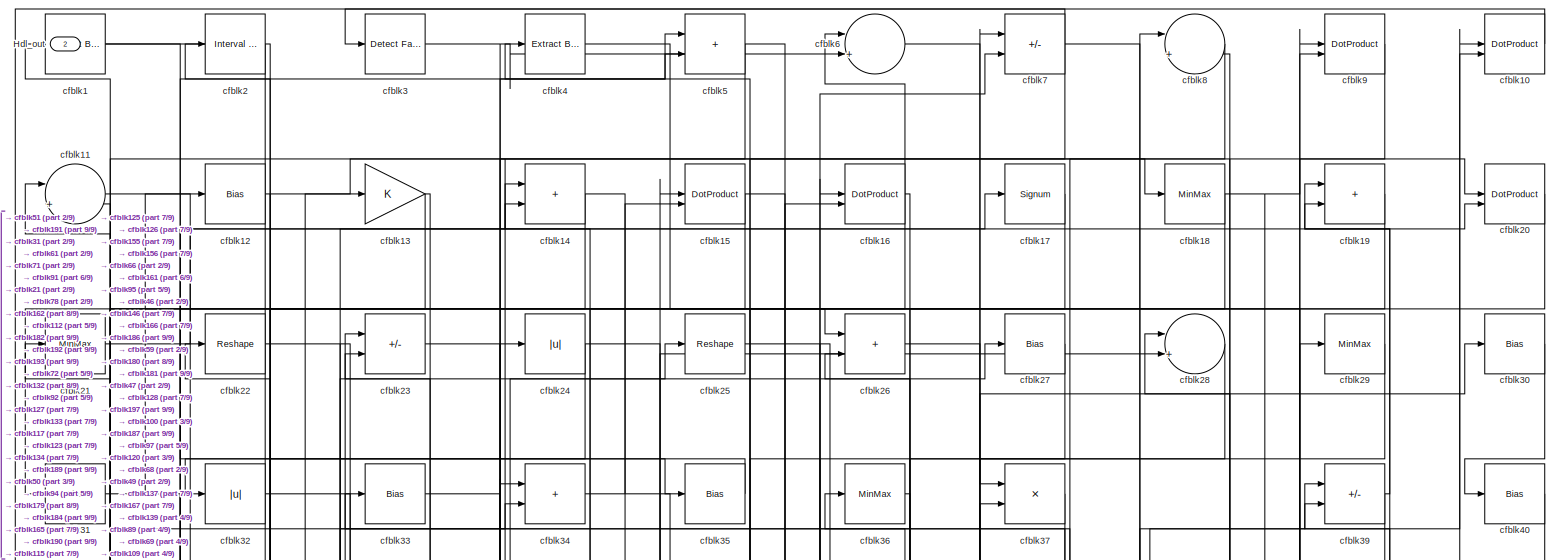
[diagram: root canvas - part 1/9, full width, top band]
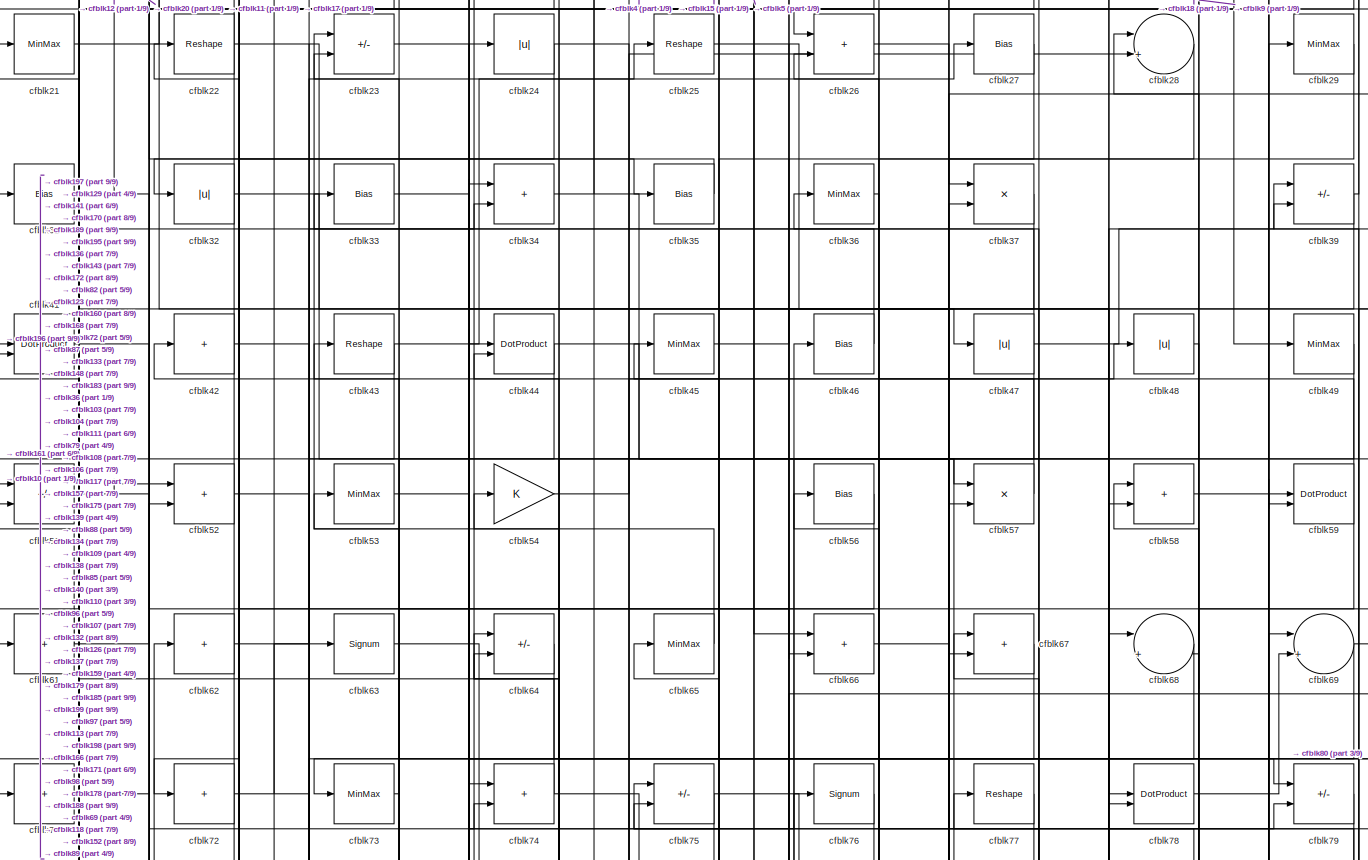
[diagram: root canvas - part 2/9, full width, top band]
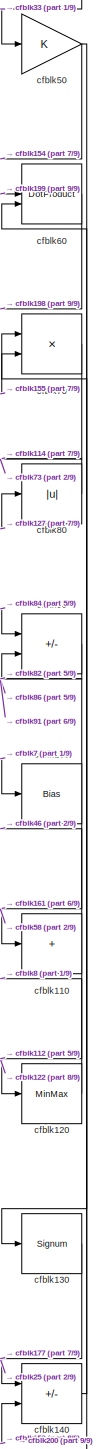
[diagram: root canvas - part 3/9, middle right region]
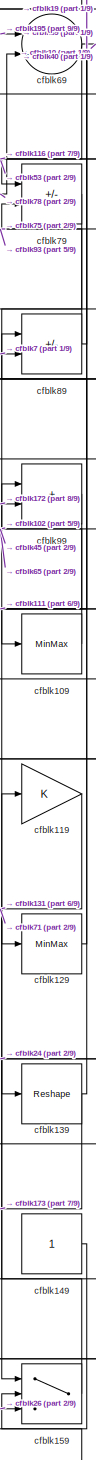
[diagram: root canvas - part 4/9, middle right region]
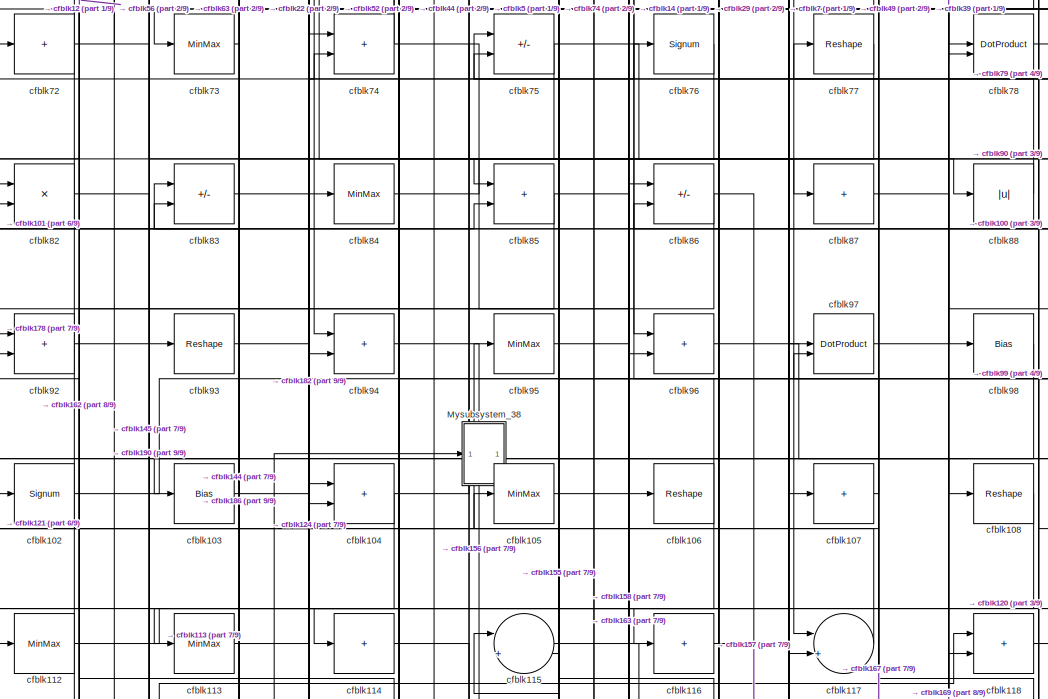
[diagram: root canvas - part 5/9, central region]
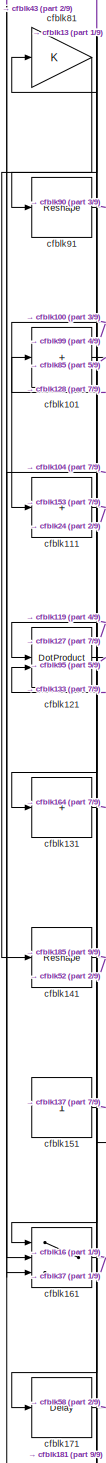
[diagram: root canvas - part 6/9, middle left region]
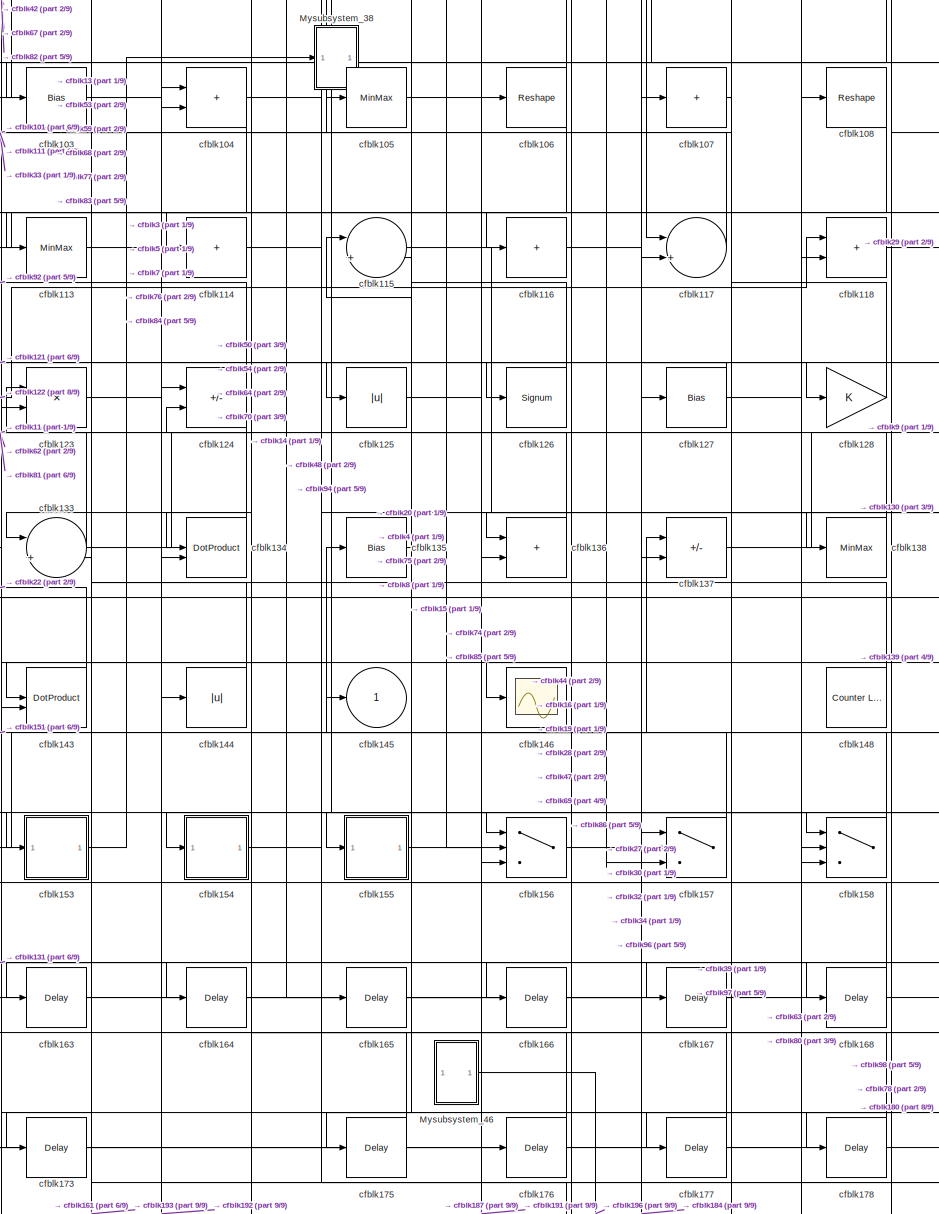
[diagram: root canvas - part 7/9, bottom center region]
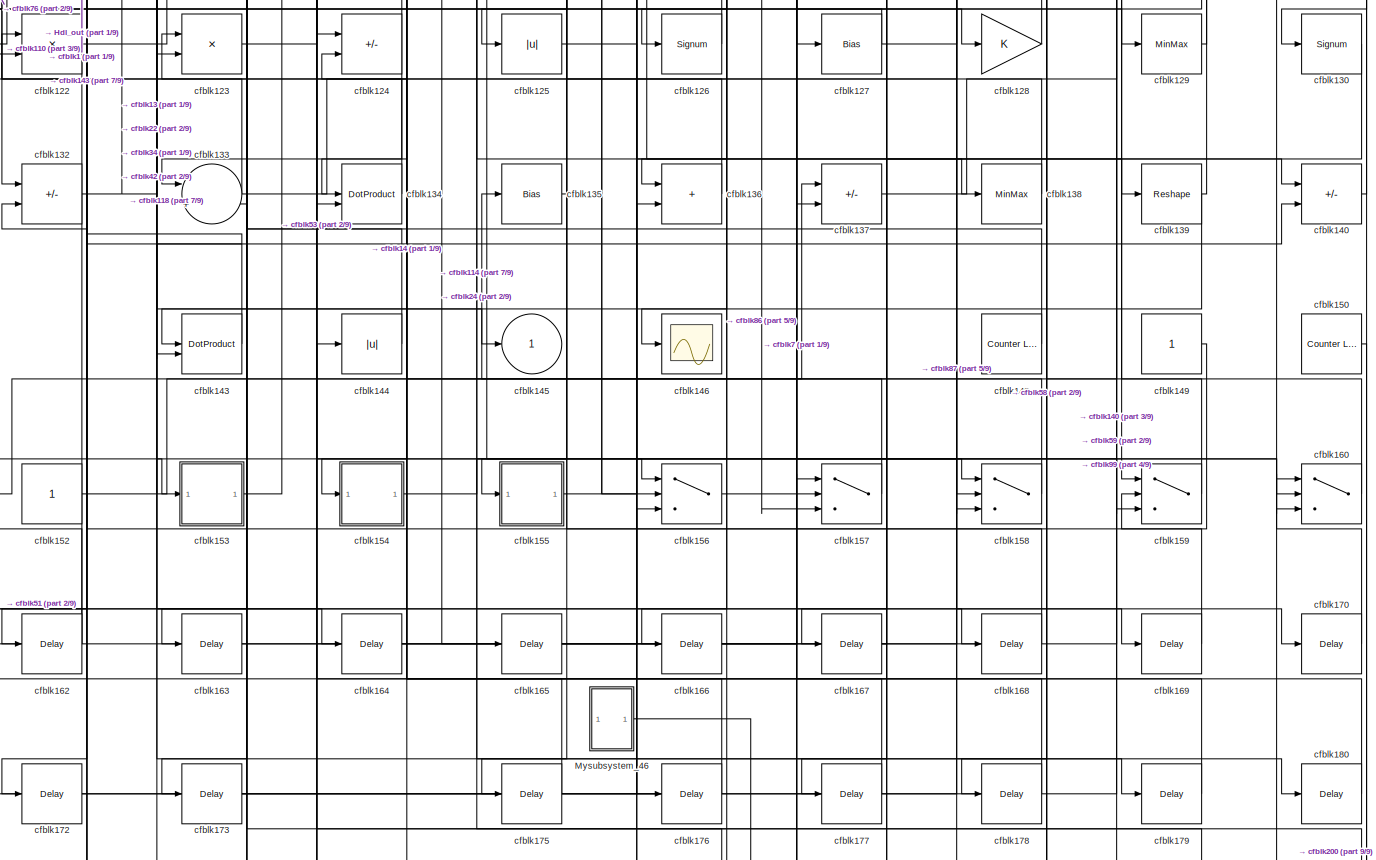
[diagram: root canvas - part 8/9, full width, bottom band]
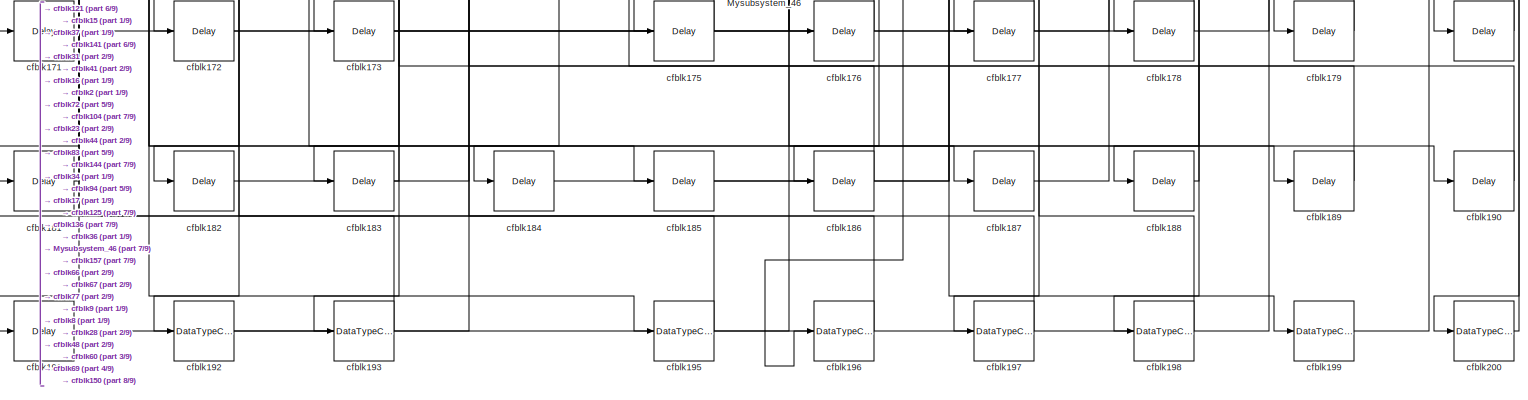
[diagram: root canvas - part 9/9, full width, bottom band]
MODEL slx_e8e21dda04a7
KIND model
CONFIG AbsTol = auto
CONFIG EnableMultiTasking = off
CONFIG FixedStep = auto
CONFIG MaxStep = auto
CONFIG MinStep = auto
CONFIG RelTol = 1e-3
CONFIG SampleTimeConstraint = Unconstrained
CONFIG SolverName = VariableStepAuto
CONFIG StartTime = 0.0
CONFIG StopTime = 10.0
BLOCK [Outport] Hdl_out
  OutDataTypeStr = uint8
  Port = 2
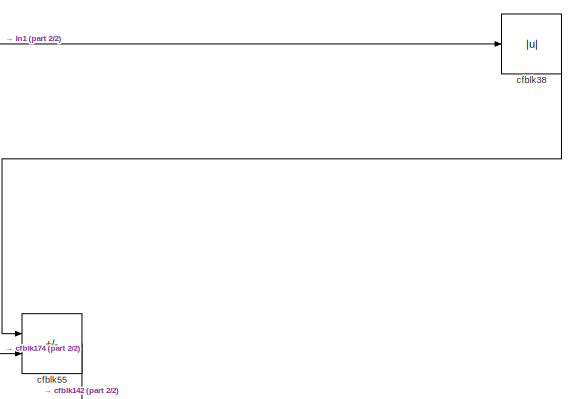
[diagram: Mysubsystem_38 - part 1/2, top right region]
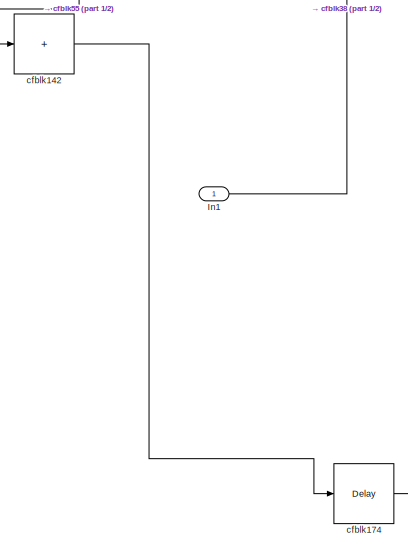
[diagram: Mysubsystem_38 - part 2/2, bottom left region]
BLOCK [SubSystem] Mysubsystem_38
  RTWFcnName = Mysubsystem_38
  RTWFcnNameOpts = User specified
  RTWFileNameOpts = Use function name
  RTWSystemCode = Reusable function
  TreatAsAtomicUnit = on
BLOCK [Inport] Mysubsystem_38/In1
BLOCK [Sum] Mysubsystem_38/cfblk142
  IconShape = rectangular
  Inputs = +
BLOCK [Delay] Mysubsystem_38/cfblk174
  InputPortMap = u0
  SampleTime = 1
BLOCK [Abs] Mysubsystem_38/cfblk38
  SaturateOnIntegerOverflow = off
BLOCK [Sum] Mysubsystem_38/cfblk55
  IconShape = rectangular
  Inputs = +-
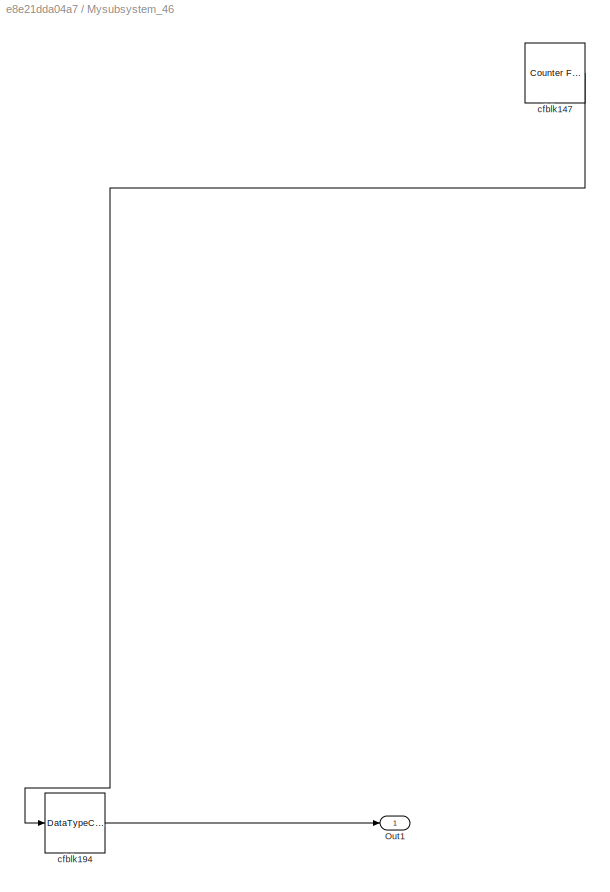
BLOCK [SubSystem] Mysubsystem_46
  RTWFcnName = Mysubsystem_46
  RTWFcnNameOpts = User specified
  RTWFileNameOpts = Use function name
  RTWSystemCode = Reusable function
  TreatAsAtomicUnit = on
BLOCK [Outport] Mysubsystem_46/Out1
BLOCK [Reference] Mysubsystem_46/cfblk147  REF=hdlsllib/Sources/Counter
Free-Running
  SourceBlock = hdlsllib/Sources/Counter\nFree-Running
  SourceType = Counter Free-Running
BLOCK [DataTypeConversion] Mysubsystem_46/cfblk194
  OutDataTypeStr = uint8
  RndMeth = Floor
  SaturateOnIntegerOverflow = off
BLOCK [Reference] cfblk1  REF=simulink/Logic and Bit
Operations/Extract Bits
  LibrarySourceBlock = hdlsllib/Logic and Bit\nOperations/Extract Bits
  SourceBlock = simulink/Logic and Bit\nOperations/Extract Bits
  SourceType = Extract Bits
BLOCK [DotProduct] cfblk10
  OutDataTypeStr = uint8
BLOCK [Bias] cfblk100
  Bias = 0.0
  SaturateOnIntegerOverflow = off
BLOCK [Sum] cfblk101
  IconShape = rectangular
  Inputs = +
  OutDataTypeStr = uint8
BLOCK [Signum] cfblk102
BLOCK [Bias] cfblk103
  Bias = 0.0
  SaturateOnIntegerOverflow = off
BLOCK [Sum] cfblk104
  IconShape = rectangular
  OutDataTypeStr = uint8
BLOCK [MinMax] cfblk105
  OutDataTypeStr = uint8
BLOCK [Reshape] cfblk106
BLOCK [Sum] cfblk107
  IconShape = rectangular
  Inputs = +
  OutDataTypeStr = uint8
BLOCK [Reshape] cfblk108
BLOCK [MinMax] cfblk109
  OutDataTypeStr = uint8
BLOCK [Sum] cfblk11
  Inputs = |++
  OutDataTypeStr = uint8
BLOCK [Sum] cfblk110
  IconShape = rectangular
  Inputs = +
  OutDataTypeStr = uint8
BLOCK [Sum] cfblk111
  IconShape = rectangular
  Inputs = +
  OutDataTypeStr = uint8
BLOCK [MinMax] cfblk112
  OutDataTypeStr = uint8
BLOCK [MinMax] cfblk113
  OutDataTypeStr = uint8
BLOCK [Sum] cfblk114
  IconShape = rectangular
  Inputs = +
  OutDataTypeStr = uint8
BLOCK [Sum] cfblk115
  Inputs = |++
  OutDataTypeStr = uint8
BLOCK [Sum] cfblk116
  IconShape = rectangular
  Inputs = +
  OutDataTypeStr = uint8
BLOCK [Sum] cfblk117
  Inputs = |++
  OutDataTypeStr = uint8
BLOCK [Sum] cfblk118
  IconShape = rectangular
  OutDataTypeStr = uint8
BLOCK [Gain] cfblk119
  OutDataTypeStr = uint8
BLOCK [Bias] cfblk12
  Bias = 0.0
  SaturateOnIntegerOverflow = off
BLOCK [MinMax] cfblk120
  OutDataTypeStr = uint8
BLOCK [DotProduct] cfblk121
  OutDataTypeStr = uint8
BLOCK [Product] cfblk122
  Inputs = */
  OutDataTypeStr = uint8
  RndMeth = Zero
  SaturateOnIntegerOverflow = on
BLOCK [Product] cfblk123
  Inputs = */
  OutDataTypeStr = uint8
  RndMeth = Zero
  SaturateOnIntegerOverflow = on
BLOCK [Sum] cfblk124
  IconShape = rectangular
  Inputs = +-
  OutDataTypeStr = uint8
BLOCK [Abs] cfblk125
  OutDataTypeStr = uint8
  SaturateOnIntegerOverflow = off
BLOCK [Signum] cfblk126
BLOCK [Bias] cfblk127
  Bias = 0.0
  SaturateOnIntegerOverflow = off
BLOCK [Gain] cfblk128
  OutDataTypeStr = uint8
BLOCK [MinMax] cfblk129
  OutDataTypeStr = uint8
BLOCK [Gain] cfblk13
  OutDataTypeStr = uint8
BLOCK [Signum] cfblk130
BLOCK [Sum] cfblk131
  IconShape = rectangular
  Inputs = +
  OutDataTypeStr = uint8
BLOCK [Sum] cfblk132
  IconShape = rectangular
  Inputs = +-
  OutDataTypeStr = uint8
BLOCK [Sum] cfblk133
  Inputs = |++
  OutDataTypeStr = uint8
BLOCK [DotProduct] cfblk134
  OutDataTypeStr = uint8
BLOCK [Bias] cfblk135
  Bias = 0.0
  SaturateOnIntegerOverflow = off
BLOCK [Sum] cfblk136
  IconShape = rectangular
  OutDataTypeStr = uint8
BLOCK [Sum] cfblk137
  IconShape = rectangular
  Inputs = +-
  OutDataTypeStr = uint8
BLOCK [MinMax] cfblk138
  OutDataTypeStr = uint8
BLOCK [Reshape] cfblk139
BLOCK [Sum] cfblk14
  IconShape = rectangular
  OutDataTypeStr = uint8
BLOCK [Sum] cfblk140
  IconShape = rectangular
  Inputs = +-
  OutDataTypeStr = uint8
BLOCK [Reshape] cfblk141
BLOCK [DotProduct] cfblk143
  OutDataTypeStr = uint8
BLOCK [Abs] cfblk144
  OutDataTypeStr = uint8
  SaturateOnIntegerOverflow = off
BLOCK [Outport] cfblk145
  OutDataTypeStr = uint8
  VectorParamsAs1DForOutWhenUnconnected = off
BLOCK [Scope] cfblk146
  Floating = off
  NumInputPorts = 1
  ScopeSpecificationString = Simulink.scopes.TimeScopeBlockCfg('CurrentConfiguration', extmgr.ConfigurationSet(extmgr.Configuration('Core','General UI',true),extmgr.Configuration('Core','Source UI',true),extmgr.Configuration('Sources','WiredSimulink',true,'DataLoggingVariableName','ScopeData2','DataLoggingSaveFormat','Array','DataLoggingLimitDataPoints',true,'DataLoggingDecimation','1'),extmgr.Configuration('Visuals','Time Do...<+868ch>
BLOCK [Reference] cfblk148  REF=hdlsllib/Sources/Counter
Limited
  SourceBlock = hdlsllib/Sources/Counter\nLimited
  SourceType = Counter Limited
BLOCK [Constant] cfblk149
  OutDataTypeStr = uint8
  SampleTime = -1
BLOCK [DotProduct] cfblk15
  OutDataTypeStr = uint8
BLOCK [Reference] cfblk150  REF=hdlsllib/Sources/Counter
Limited
  SourceBlock = hdlsllib/Sources/Counter\nLimited
  SourceType = Counter Limited
BLOCK [Constant] cfblk151
  OutDataTypeStr = uint8
  SampleTime = -1
BLOCK [Constant] cfblk152
  OutDataTypeStr = uint8
  SampleTime = -1
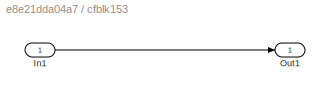
BLOCK [SubSystem] cfblk153
  LibrarySourceBlock = hdlsllib/Ports &\nSubsystems/Subsystem
BLOCK [Inport] cfblk153/In1
BLOCK [Outport] cfblk153/Out1
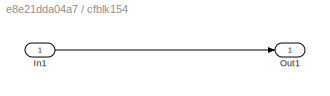
BLOCK [SubSystem] cfblk154
  LibrarySourceBlock = hdlsllib/Ports &\nSubsystems/Subsystem
BLOCK [Inport] cfblk154/In1
BLOCK [Outport] cfblk154/Out1
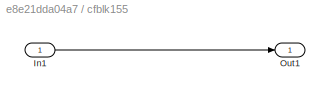
BLOCK [SubSystem] cfblk155
  LibrarySourceBlock = hdlsllib/Ports &\nSubsystems/Subsystem
BLOCK [Inport] cfblk155/In1
BLOCK [Outport] cfblk155/Out1
BLOCK [Switch] cfblk156
  InputSameDT = off
  OutDataTypeStr = uint8
  SaturateOnIntegerOverflow = off
BLOCK [Switch] cfblk157
  InputSameDT = off
  OutDataTypeStr = uint8
  SaturateOnIntegerOverflow = off
BLOCK [Switch] cfblk158
  InputSameDT = off
  OutDataTypeStr = uint8
  SaturateOnIntegerOverflow = off
BLOCK [Switch] cfblk159
  InputSameDT = off
  OutDataTypeStr = uint8
  SaturateOnIntegerOverflow = off
BLOCK [DotProduct] cfblk16
  OutDataTypeStr = uint8
BLOCK [Switch] cfblk160
  InputSameDT = off
  OutDataTypeStr = uint8
  SaturateOnIntegerOverflow = off
BLOCK [Switch] cfblk161
  InputSameDT = off
  OutDataTypeStr = uint8
  SaturateOnIntegerOverflow = off
BLOCK [Delay] cfblk162
  InputPortMap = u0
  SampleTime = 1
BLOCK [Delay] cfblk163
  InputPortMap = u0
  SampleTime = 1
BLOCK [Delay] cfblk164
  InputPortMap = u0
  SampleTime = 1
BLOCK [Delay] cfblk165
  InputPortMap = u0
  SampleTime = 1
BLOCK [Delay] cfblk166
  InputPortMap = u0
  SampleTime = 1
BLOCK [Delay] cfblk167
  InputPortMap = u0
  SampleTime = 1
BLOCK [Delay] cfblk168
  InputPortMap = u0
  SampleTime = 1
BLOCK [Delay] cfblk169
  InputPortMap = u0
  SampleTime = 1
BLOCK [Signum] cfblk17
BLOCK [Delay] cfblk170
  InputPortMap = u0
  SampleTime = 1
BLOCK [Delay] cfblk171
  InputPortMap = u0
  SampleTime = 1
BLOCK [Delay] cfblk172
  InputPortMap = u0
  SampleTime = 1
BLOCK [Delay] cfblk173
  InputPortMap = u0
  SampleTime = 1
BLOCK [Delay] cfblk175
  InputPortMap = u0
  SampleTime = 1
BLOCK [Delay] cfblk176
  InputPortMap = u0
  SampleTime = 1
BLOCK [Delay] cfblk177
  InputPortMap = u0
  SampleTime = 1
BLOCK [Delay] cfblk178
  InputPortMap = u0
  SampleTime = 1
BLOCK [Delay] cfblk179
  InputPortMap = u0
  SampleTime = 1
BLOCK [MinMax] cfblk18
  OutDataTypeStr = uint8
BLOCK [Delay] cfblk180
  InputPortMap = u0
  SampleTime = 1
BLOCK [Delay] cfblk181
  InputPortMap = u0
  SampleTime = 1
BLOCK [Delay] cfblk182
  InputPortMap = u0
  SampleTime = 1
BLOCK [Delay] cfblk183
  InputPortMap = u0
  SampleTime = 1
BLOCK [Delay] cfblk184
  InputPortMap = u0
  SampleTime = 1
BLOCK [Delay] cfblk185
  InputPortMap = u0
  SampleTime = 1
BLOCK [Delay] cfblk186
  InputPortMap = u0
  SampleTime = 1
BLOCK [Delay] cfblk187
  InputPortMap = u0
  SampleTime = 1
BLOCK [Delay] cfblk188
  InputPortMap = u0
  SampleTime = 1
BLOCK [Delay] cfblk189
  InputPortMap = u0
  SampleTime = 1
BLOCK [Sum] cfblk19
  IconShape = rectangular
  OutDataTypeStr = uint8
BLOCK [Delay] cfblk190
  InputPortMap = u0
  SampleTime = 1
BLOCK [Delay] cfblk191
  InputPortMap = u0
  SampleTime = 1
BLOCK [DataTypeConversion] cfblk192
  OutDataTypeStr = uint8
  RndMeth = Floor
  SaturateOnIntegerOverflow = off
BLOCK [DataTypeConversion] cfblk193
  OutDataTypeStr = uint8
  RndMeth = Floor
  SaturateOnIntegerOverflow = off
BLOCK [DataTypeConversion] cfblk195
  OutDataTypeStr = uint8
  RndMeth = Floor
  SaturateOnIntegerOverflow = off
BLOCK [DataTypeConversion] cfblk196
  OutDataTypeStr = uint8
  RndMeth = Floor
  SaturateOnIntegerOverflow = off
BLOCK [DataTypeConversion] cfblk197
  OutDataTypeStr = uint8
  RndMeth = Floor
  SaturateOnIntegerOverflow = off
BLOCK [DataTypeConversion] cfblk198
  OutDataTypeStr = uint8
  RndMeth = Floor
  SaturateOnIntegerOverflow = off
BLOCK [DataTypeConversion] cfblk199
  OutDataTypeStr = uint8
  RndMeth = Floor
  SaturateOnIntegerOverflow = off
BLOCK [Reference] cfblk2  REF=hdlsllib/Logic and Bit
Operations/Interval Test
  SourceBlock = hdlsllib/Logic and Bit\nOperations/Interval Test
  SourceType = Interval Test
BLOCK [DotProduct] cfblk20
  OutDataTypeStr = uint8
BLOCK [DataTypeConversion] cfblk200
  OutDataTypeStr = uint8
  RndMeth = Floor
  SaturateOnIntegerOverflow = off
BLOCK [MinMax] cfblk21
  OutDataTypeStr = uint8
BLOCK [Reshape] cfblk22
BLOCK [Sum] cfblk23
  IconShape = rectangular
  Inputs = +-
  OutDataTypeStr = uint8
BLOCK [Abs] cfblk24
  OutDataTypeStr = uint8
  SaturateOnIntegerOverflow = off
BLOCK [Reshape] cfblk25
BLOCK [Sum] cfblk26
  IconShape = rectangular
  OutDataTypeStr = uint8
BLOCK [Bias] cfblk27
  Bias = 0.0
  SaturateOnIntegerOverflow = off
BLOCK [Sum] cfblk28
  Inputs = |++
  OutDataTypeStr = uint8
BLOCK [MinMax] cfblk29
  OutDataTypeStr = uint8
BLOCK [Reference] cfblk3  REF=hdlsllib/Logic and Bit
Operations/Detect Fall
Nonpositive
  SourceBlock = hdlsllib/Logic and Bit\nOperations/Detect Fall\nNonpositive
  SourceType = Detect Fall Nonpositive
BLOCK [Bias] cfblk30
  Bias = 0.0
  SaturateOnIntegerOverflow = off
BLOCK [Bias] cfblk31
  Bias = 0.0
  SaturateOnIntegerOverflow = off
BLOCK [Abs] cfblk32
  OutDataTypeStr = uint8
  SaturateOnIntegerOverflow = off
BLOCK [Bias] cfblk33
  Bias = 0.0
  SaturateOnIntegerOverflow = off
BLOCK [Sum] cfblk34
  IconShape = rectangular
  OutDataTypeStr = uint8
BLOCK [Bias] cfblk35
  Bias = 0.0
  SaturateOnIntegerOverflow = off
BLOCK [MinMax] cfblk36
  OutDataTypeStr = uint8
BLOCK [Product] cfblk37
  Inputs = */
  OutDataTypeStr = uint8
  RndMeth = Zero
  SaturateOnIntegerOverflow = on
BLOCK [Sum] cfblk39
  IconShape = rectangular
  Inputs = +-
  OutDataTypeStr = uint8
BLOCK [Reference] cfblk4  REF=simulink/Logic and Bit
Operations/Extract Bits
  LibrarySourceBlock = hdlsllib/Logic and Bit\nOperations/Extract Bits
  SourceBlock = simulink/Logic and Bit\nOperations/Extract Bits
  SourceType = Extract Bits
BLOCK [Bias] cfblk40
  Bias = 0.0
  SaturateOnIntegerOverflow = off
BLOCK [DotProduct] cfblk41
  OutDataTypeStr = uint8
BLOCK [Sum] cfblk42
  IconShape = rectangular
  Inputs = +
  OutDataTypeStr = uint8
BLOCK [Reshape] cfblk43
BLOCK [DotProduct] cfblk44
  OutDataTypeStr = uint8
BLOCK [MinMax] cfblk45
  OutDataTypeStr = uint8
BLOCK [Bias] cfblk46
  Bias = 0.0
  SaturateOnIntegerOverflow = off
BLOCK [Abs] cfblk47
  OutDataTypeStr = uint8
  SaturateOnIntegerOverflow = off
BLOCK [Abs] cfblk48
  OutDataTypeStr = uint8
  SaturateOnIntegerOverflow = off
BLOCK [MinMax] cfblk49
  OutDataTypeStr = uint8
BLOCK [Sum] cfblk5
  IconShape = rectangular
  OutDataTypeStr = uint8
BLOCK [Gain] cfblk50
  OutDataTypeStr = uint8
BLOCK [Sum] cfblk51
  IconShape = rectangular
  Inputs = +-
  OutDataTypeStr = uint8
BLOCK [Sum] cfblk52
  IconShape = rectangular
  OutDataTypeStr = uint8
BLOCK [MinMax] cfblk53
  OutDataTypeStr = uint8
BLOCK [Gain] cfblk54
  OutDataTypeStr = uint8
BLOCK [Bias] cfblk56
  Bias = 0.0
  SaturateOnIntegerOverflow = off
BLOCK [Product] cfblk57
  Inputs = */
  OutDataTypeStr = uint8
  RndMeth = Zero
  SaturateOnIntegerOverflow = on
BLOCK [Sum] cfblk58
  IconShape = rectangular
  OutDataTypeStr = uint8
BLOCK [DotProduct] cfblk59
  OutDataTypeStr = uint8
BLOCK [Sum] cfblk6
  Inputs = |++
  OutDataTypeStr = uint8
BLOCK [DotProduct] cfblk60
  OutDataTypeStr = uint8
BLOCK [Sum] cfblk61
  IconShape = rectangular
  Inputs = +
  OutDataTypeStr = uint8
BLOCK [Sum] cfblk62
  IconShape = rectangular
  Inputs = +
  OutDataTypeStr = uint8
BLOCK [Signum] cfblk63
BLOCK [Sum] cfblk64
  IconShape = rectangular
  Inputs = +-
  OutDataTypeStr = uint8
BLOCK [MinMax] cfblk65
  OutDataTypeStr = uint8
BLOCK [Sum] cfblk66
  IconShape = rectangular
  OutDataTypeStr = uint8
BLOCK [Sum] cfblk67
  IconShape = rectangular
  OutDataTypeStr = uint8
BLOCK [Sum] cfblk68
  Inputs = |++
  OutDataTypeStr = uint8
BLOCK [Sum] cfblk69
  Inputs = |++
  OutDataTypeStr = uint8
BLOCK [Sum] cfblk7
  IconShape = rectangular
  Inputs = +-
  OutDataTypeStr = uint8
BLOCK [Product] cfblk70
  Inputs = */
  OutDataTypeStr = uint8
  RndMeth = Zero
  SaturateOnIntegerOverflow = on
BLOCK [Sum] cfblk71
  IconShape = rectangular
  Inputs = +
  OutDataTypeStr = uint8
BLOCK [Sum] cfblk72
  IconShape = rectangular
  Inputs = +
  OutDataTypeStr = uint8
BLOCK [MinMax] cfblk73
  OutDataTypeStr = uint8
BLOCK [Sum] cfblk74
  IconShape = rectangular
  OutDataTypeStr = uint8
BLOCK [Sum] cfblk75
  IconShape = rectangular
  Inputs = +-
  OutDataTypeStr = uint8
BLOCK [Signum] cfblk76
BLOCK [Reshape] cfblk77
BLOCK [DotProduct] cfblk78
  OutDataTypeStr = uint8
BLOCK [Sum] cfblk79
  IconShape = rectangular
  Inputs = +-
  OutDataTypeStr = uint8
BLOCK [Sum] cfblk8
  Inputs = |++
  OutDataTypeStr = uint8
BLOCK [Abs] cfblk80
  OutDataTypeStr = uint8
  SaturateOnIntegerOverflow = off
BLOCK [Gain] cfblk81
  OutDataTypeStr = uint8
BLOCK [Product] cfblk82
  Inputs = */
  OutDataTypeStr = uint8
  RndMeth = Zero
  SaturateOnIntegerOverflow = on
BLOCK [Sum] cfblk83
  IconShape = rectangular
  Inputs = +-
  OutDataTypeStr = uint8
BLOCK [MinMax] cfblk84
  OutDataTypeStr = uint8
BLOCK [Sum] cfblk85
  IconShape = rectangular
  OutDataTypeStr = uint8
BLOCK [Sum] cfblk86
  IconShape = rectangular
  Inputs = +-
  OutDataTypeStr = uint8
BLOCK [Sum] cfblk87
  IconShape = rectangular
  Inputs = +
  OutDataTypeStr = uint8
BLOCK [Abs] cfblk88
  OutDataTypeStr = uint8
  SaturateOnIntegerOverflow = off
BLOCK [Sum] cfblk89
  IconShape = rectangular
  Inputs = +-
  OutDataTypeStr = uint8
BLOCK [DotProduct] cfblk9
  OutDataTypeStr = uint8
BLOCK [Sum] cfblk90
  IconShape = rectangular
  Inputs = +-
  OutDataTypeStr = uint8
BLOCK [Reshape] cfblk91
BLOCK [Sum] cfblk92
  IconShape = rectangular
  OutDataTypeStr = uint8
BLOCK [Reshape] cfblk93
BLOCK [Sum] cfblk94
  IconShape = rectangular
  OutDataTypeStr = uint8
BLOCK [MinMax] cfblk95
  OutDataTypeStr = uint8
BLOCK [Sum] cfblk96
  IconShape = rectangular
  OutDataTypeStr = uint8
BLOCK [DotProduct] cfblk97
  OutDataTypeStr = uint8
BLOCK [Bias] cfblk98
  Bias = 0.0
  SaturateOnIntegerOverflow = off
BLOCK [Sum] cfblk99
  IconShape = rectangular
  OutDataTypeStr = uint8
LINE Mysubsystem_38/In1:1 -> Mysubsystem_38/cfblk38:1
LINE Mysubsystem_38/cfblk142:1 -> Mysubsystem_38/cfblk174:1
LINE Mysubsystem_38/cfblk174:1 -> Mysubsystem_38/cfblk55:2
LINE Mysubsystem_38/cfblk38:1 -> Mysubsystem_38/cfblk55:1
LINE Mysubsystem_38/cfblk55:1 -> Mysubsystem_38/cfblk142:1
LINE Mysubsystem_46/cfblk147:1 -> Mysubsystem_46/cfblk194:1
LINE Mysubsystem_46/cfblk194:1 -> Mysubsystem_46/Out1:1
LINE Mysubsystem_46:1 -> cfblk196:1
NET cfblk100:1 -> cfblk161:1, cfblk86:2
NET cfblk101:1 -> cfblk171:1, cfblk85:2
LINE cfblk102:1 -> cfblk99:1
LINE cfblk103:1 -> cfblk76:1
NET cfblk104:1 -> cfblk161:3, cfblk193:1, cfblk48:1
LINE cfblk105:1 -> cfblk176:1
NET cfblk106:1 -> cfblk143:1, cfblk44:2
LINE cfblk107:1 -> cfblk67:1
LINE cfblk108:1 -> cfblk143:2
NET cfblk109:1 -> cfblk45:1, cfblk65:1
LINE cfblk10:1 -> cfblk51:1
NET cfblk110:1 -> cfblk122:2, cfblk46:1
NET cfblk111:1 -> cfblk153:1, cfblk24:1
LINE cfblk112:1 -> cfblk120:1
LINE cfblk113:1 -> cfblk84:1
LINE cfblk114:1 -> cfblk180:1
LINE cfblk115:1 -> cfblk138:1
LINE cfblk116:1 -> cfblk128:1
LINE cfblk117:1 -> cfblk64:1
LINE cfblk118:1 -> cfblk29:1
LINE cfblk119:1 -> cfblk131:1
LINE cfblk11:1 -> cfblk78:2
LINE cfblk120:1 -> cfblk8:2
LINE cfblk121:1 -> cfblk95:1
LINE cfblk122:1 -> cfblk118:1
LINE cfblk123:1 -> cfblk5:1
NET cfblk124:1 -> cfblk163:1, cfblk92:2
LINE cfblk125:1 -> cfblk187:1
LINE cfblk126:1 -> cfblk4:1
NET cfblk127:1 -> cfblk121:1, cfblk80:1
NET cfblk128:1 -> cfblk101:1, cfblk33:1
LINE cfblk129:1 -> cfblk89:1
NET cfblk12:1 -> cfblk18:1, cfblk72:1
LINE cfblk130:1 -> cfblk177:1
LINE cfblk131:1 -> cfblk164:1
NET cfblk132:1 -> cfblk13:1, cfblk34:2
NET cfblk133:1 -> cfblk118:2, cfblk11:2, cfblk81:1
LINE cfblk134:1 -> cfblk123:1
NET cfblk135:1 -> cfblk105:1, cfblk175:1
LINE cfblk136:1 -> cfblk62:1
LINE cfblk137:1 -> cfblk9:1
LINE cfblk138:1 -> cfblk75:1
NET cfblk139:1 -> cfblk173:1, cfblk19:1
NET cfblk13:1 -> cfblk133:2, cfblk91:1
LINE cfblk140:1 -> cfblk70:2
NET cfblk141:1 -> cfblk185:1, cfblk52:2
NET cfblk143:1 -> cfblk122:1, cfblk22:1
LINE cfblk144:1 -> cfblk83:1
LINE cfblk148:1 -> cfblk53:1
LINE cfblk149:1 -> cfblk159:2
NET cfblk14:1 -> cfblk112:1, cfblk165:1
LINE cfblk150:1 -> cfblk200:1
LINE cfblk151:1 -> cfblk137:1
NET cfblk152:1 -> cfblk140:2, cfblk59:1
LINE cfblk153/In1:1 -> cfblk153/Out1:1
LINE cfblk153:1 -> Mysubsystem_38:1
LINE cfblk154/In1:1 -> cfblk154/Out1:1
LINE cfblk154:1 -> cfblk158:1
LINE cfblk155/In1:1 -> cfblk155/Out1:1
NET cfblk155:1 -> cfblk16:2, cfblk70:1
LINE cfblk156:1 -> cfblk30:1
LINE cfblk157:1 -> cfblk54:1
LINE cfblk158:1 -> cfblk135:1
LINE cfblk159:1 -> cfblk119:1
NET cfblk15:1 -> cfblk156:2, cfblk191:1, cfblk31:1
LINE cfblk160:1 -> cfblk58:1
NET cfblk161:1 -> cfblk16:1, cfblk37:2
NET cfblk162:1 -> Hdl_out:1, cfblk1:1
LINE cfblk163:1 -> cfblk86:1
LINE cfblk164:1 -> cfblk157:2
LINE cfblk165:1 -> cfblk9:2
LINE cfblk166:1 -> cfblk68:1
LINE cfblk167:1 -> cfblk97:2
LINE cfblk168:1 -> cfblk115:1
LINE cfblk169:1 -> cfblk132:2
NET cfblk16:1 -> cfblk146:1, cfblk182:1, cfblk6:1
LINE cfblk170:1 -> cfblk160:1
LINE cfblk171:1 -> cfblk58:2
LINE cfblk172:1 -> cfblk99:2
LINE cfblk173:1 -> cfblk156:3
LINE cfblk175:1 -> cfblk64:2
LINE cfblk176:1 -> cfblk124:2
LINE cfblk177:1 -> cfblk104:1
LINE cfblk178:1 -> cfblk92:1
LINE cfblk179:1 -> cfblk14:2
LINE cfblk17:1 -> cfblk184:1
LINE cfblk180:1 -> cfblk7:1
LINE cfblk181:1 -> cfblk121:2
LINE cfblk182:1 -> cfblk94:2
LINE cfblk183:1 -> cfblk23:2
LINE cfblk184:1 -> cfblk157:1
LINE cfblk185:1 -> cfblk67:2
LINE cfblk186:1 -> cfblk83:2
LINE cfblk187:1 -> cfblk8:1
LINE cfblk188:1 -> cfblk28:1
LINE cfblk189:1 -> cfblk34:1
NET cfblk18:1 -> cfblk20:1, cfblk49:1, cfblk71:1
LINE cfblk190:1 -> cfblk15:1
LINE cfblk191:1 -> cfblk136:2
LINE cfblk192:1 -> cfblk144:1
LINE cfblk193:1 -> cfblk2:1
NET cfblk195:1 -> cfblk44:1, cfblk69:1
LINE cfblk196:1 -> cfblk41:1
LINE cfblk197:1 -> cfblk41:2
LINE cfblk198:1 -> cfblk77:1
LINE cfblk199:1 -> cfblk60:1
LINE cfblk19:1 -> cfblk166:1
LINE cfblk1:1 -> cfblk35:1
LINE cfblk200:1 -> cfblk60:2
LINE cfblk20:1 -> cfblk125:1
NET cfblk21:1 -> cfblk17:1, cfblk26:1, cfblk66:2
NET cfblk22:1 -> cfblk179:1, cfblk57:1, cfblk97:1
LINE cfblk23:1 -> cfblk74:1
NET cfblk24:1 -> cfblk139:1, cfblk172:1
NET cfblk25:1 -> cfblk140:1, cfblk78:1
LINE cfblk26:1 -> cfblk159:3
LINE cfblk27:1 -> cfblk137:2
LINE cfblk28:1 -> cfblk136:1
NET cfblk29:1 -> cfblk85:1, cfblk96:2
LINE cfblk2:1 -> cfblk192:1
LINE cfblk30:1 -> cfblk40:1
NET cfblk31:1 -> cfblk12:1, cfblk189:1
LINE cfblk32:1 -> cfblk127:1
LINE cfblk33:1 -> cfblk50:1
NET cfblk34:1 -> cfblk117:1, cfblk15:2
LINE cfblk35:1 -> cfblk32:1
LINE cfblk36:1 -> cfblk186:1
LINE cfblk37:1 -> cfblk181:1
NET cfblk39:1 -> cfblk167:1, cfblk19:2
NET cfblk3:1 -> cfblk117:2, cfblk6:2
LINE cfblk40:1 -> cfblk109:1
LINE cfblk41:1 -> cfblk195:1
NET cfblk42:1 -> cfblk160:2, cfblk168:1
NET cfblk43:1 -> cfblk161:2, cfblk25:1
NET cfblk44:1 -> cfblk183:1, cfblk57:2, cfblk98:1
LINE cfblk45:1 -> cfblk47:1
LINE cfblk46:1 -> cfblk11:1
NET cfblk47:1 -> cfblk10:1, cfblk126:1, cfblk26:2
LINE cfblk48:1 -> cfblk188:1
LINE cfblk49:1 -> cfblk96:1
LINE cfblk4:1 -> cfblk59:2
NET cfblk50:1 -> cfblk130:1, cfblk154:1
NET cfblk51:1 -> cfblk170:1, cfblk52:1
LINE cfblk52:1 -> cfblk87:1
NET cfblk53:1 -> cfblk160:3, cfblk79:1
LINE cfblk54:1 -> cfblk28:2
LINE cfblk56:1 -> cfblk82:1
LINE cfblk57:1 -> cfblk42:1
LINE cfblk58:1 -> cfblk110:1
NET cfblk59:1 -> cfblk133:1, cfblk36:1
NET cfblk5:1 -> cfblk61:1, cfblk66:1, cfblk94:1
LINE cfblk60:1 -> cfblk198:1
NET cfblk61:1 -> cfblk20:2, cfblk51:2
LINE cfblk62:1 -> cfblk27:1
LINE cfblk63:1 -> cfblk108:1
LINE cfblk64:1 -> cfblk104:2
LINE cfblk65:1 -> cfblk23:1
LINE cfblk66:1 -> cfblk199:1
LINE cfblk67:1 -> cfblk123:2
LINE cfblk68:1 -> cfblk103:1
NET cfblk69:1 -> cfblk10:2, cfblk116:1
LINE cfblk6:1 -> cfblk37:1
LINE cfblk70:1 -> cfblk114:1
NET cfblk71:1 -> cfblk129:1, cfblk5:2, cfblk74:2
NET cfblk72:1 -> cfblk190:1, cfblk63:1
LINE cfblk73:1 -> cfblk43:1
NET cfblk74:1 -> cfblk106:1, cfblk21:1, cfblk88:1
NET cfblk75:1 -> cfblk107:1, cfblk134:1
LINE cfblk76:1 -> cfblk132:1
LINE cfblk77:1 -> cfblk113:1
NET cfblk78:1 -> cfblk178:1, cfblk69:2
LINE cfblk79:1 -> cfblk159:1
NET cfblk7:1 -> cfblk100:1, cfblk134:2, cfblk3:1, cfblk89:2
LINE cfblk80:1 -> cfblk73:1
LINE cfblk81:1 -> cfblk141:1
LINE cfblk82:1 -> cfblk145:1
LINE cfblk83:1 -> cfblk124:1
LINE cfblk84:1 -> cfblk90:1
NET cfblk85:1 -> cfblk102:1, cfblk158:3
NET cfblk86:1 -> cfblk157:3, cfblk162:1
LINE cfblk87:1 -> cfblk169:1
LINE cfblk88:1 -> cfblk56:1
NET cfblk89:1 -> cfblk39:2, cfblk75:2
LINE cfblk8:1 -> cfblk115:2
LINE cfblk90:1 -> cfblk82:2
LINE cfblk91:1 -> cfblk90:2
NET cfblk92:1 -> cfblk14:1, cfblk93:1
LINE cfblk93:1 -> cfblk79:2
LINE cfblk94:1 -> cfblk156:1
LINE cfblk95:1 -> cfblk7:2
LINE cfblk96:1 -> cfblk158:2
LINE cfblk97:1 -> cfblk39:1
LINE cfblk98:1 -> cfblk155:1
LINE cfblk99:1 -> cfblk111:1
NET cfblk9:1 -> cfblk197:1, cfblk68:2
note: NET lines group one-source signal fan-out (src -> all destinations, sorted); 1:1 wires keep LINE
